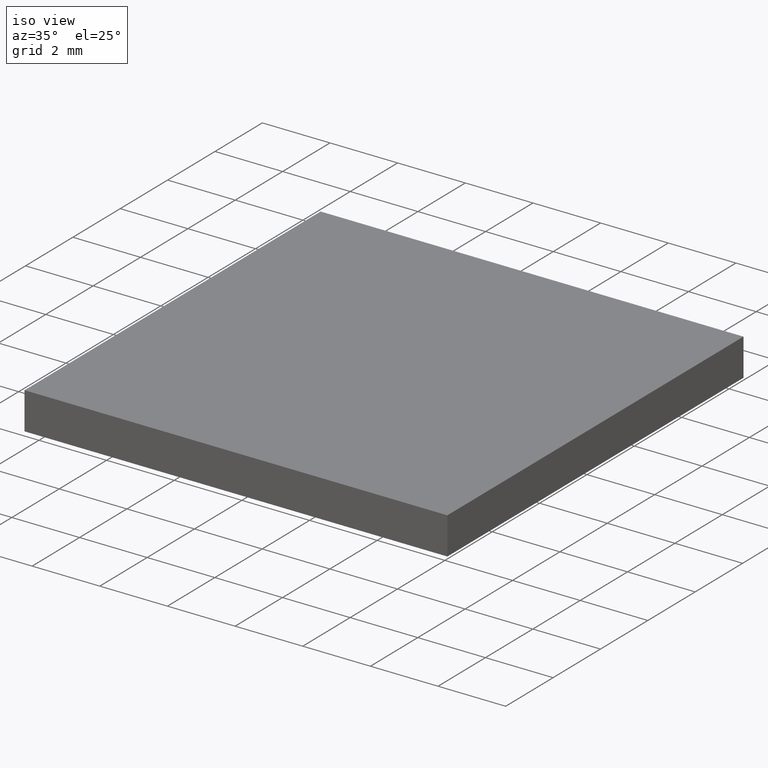
[diagram: clean part render]
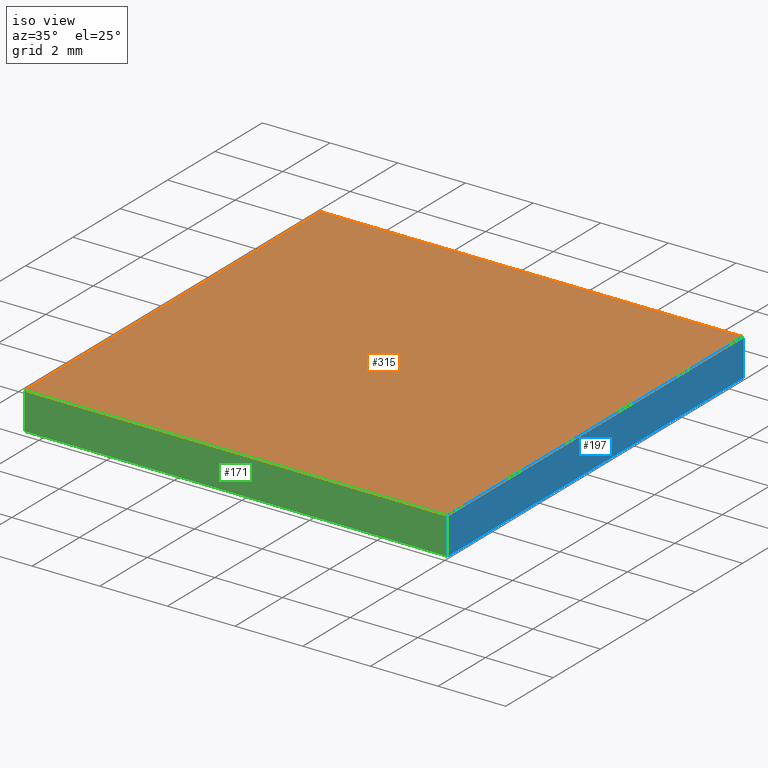
[diagram: same view with three faces highlighted in distinct colors, each labeled with its STEP entity id]
A machine part, iso view with three faces highlighted in distinct colors.
Their STEP definitions:

[orange] entity #315 — the highlighted planar face has unit normal (0, 0, -1).
#2 = VECTOR ( 'NONE', #17, 1000.000000000000000 ) ;
#12 = DIRECTION ( 'NONE',  ( -1.000000000000000000, 0.0000000000000000000, -0.0000000000000000000 ) ) ;
#17 = DIRECTION ( 'NONE',  ( 1.000000000000000000, 0.0000000000000000000, 0.0000000000000000000 ) ) ;
#30 = VERTEX_POINT ( 'NONE', #274 ) ;
#46 = EDGE_LOOP ( 'NONE', ( #149, #207, #247, #236 ) ) ;
#51 = CARTESIAN_POINT ( 'NONE',  ( -6.249999999999998200, 6.250000000000000900, 1.100000000000000100 ) ) ;
#53 = VECTOR ( 'NONE', #280, 1000.000000000000000 ) ;
#61 = PLANE ( 'NONE',  #298 ) ;
#64 = CARTESIAN_POINT ( 'NONE',  ( -6.249999999999998200, -6.249999999999999100, 1.100000000000000100 ) ) ;
#70 = VERTEX_POINT ( 'NONE', #51 ) ;
#79 = FACE_OUTER_BOUND ( 'NONE', #46, .T. ) ;
#87 = CARTESIAN_POINT ( 'NONE',  ( -6.249999999999998200, 6.250000000000000900, 1.100000000000000100 ) ) ;
#89 = DIRECTION ( 'NONE',  ( -0.0000000000000000000, -1.000000000000000000, -0.0000000000000000000 ) ) ;
#91 = VERTEX_POINT ( 'NONE', #127 ) ;
#119 = LINE ( 'NONE', #153, #53 ) ;
#127 = CARTESIAN_POINT ( 'NONE',  ( 6.250000000000001800, 6.250000000000000900, 1.100000000000000100 ) ) ;
#142 = LINE ( 'NONE', #64, #2 ) ;
#149 = ORIENTED_EDGE ( 'NONE', *, *, #208, .T. ) ;
#153 = CARTESIAN_POINT ( 'NONE',  ( 6.250000000000001800, -6.249999999999999100, 1.100000000000000100 ) ) ;
#155 = VECTOR ( 'NONE', #282, 1000.000000000000000 ) ;
#168 = LINE ( 'NONE', #87, #155 ) ;
#177 = EDGE_CURVE ( 'NONE', #91, #70, #168, .T. ) ;
#207 = ORIENTED_EDGE ( 'NONE', *, *, #177, .T. ) ;
#208 = EDGE_CURVE ( 'NONE', #229, #91, #119, .T. ) ;
#213 = DIRECTION ( 'NONE',  ( 0.0000000000000000000, 0.0000000000000000000, -1.000000000000000000 ) ) ;
#229 = VERTEX_POINT ( 'NONE', #255 ) ;
#233 = CARTESIAN_POINT ( 'NONE',  ( -6.249999999999998200, -6.249999999999999100, 1.100000000000000100 ) ) ;
#236 = ORIENTED_EDGE ( 'NONE', *, *, #283, .T. ) ;
#245 = EDGE_CURVE ( 'NONE', #70, #30, #281, .T. ) ;
#247 = ORIENTED_EDGE ( 'NONE', *, *, #245, .T. ) ;
#255 = CARTESIAN_POINT ( 'NONE',  ( 6.250000000000001800, -6.249999999999999100, 1.100000000000000100 ) ) ;
#257 = CARTESIAN_POINT ( 'NONE',  ( 0.0000000000000000000, 0.0000000000000000000, 1.100000000000000100 ) ) ;
#271 = VECTOR ( 'NONE', #89, 1000.000000000000000 ) ;
#274 = CARTESIAN_POINT ( 'NONE',  ( -6.249999999999998200, -6.249999999999999100, 1.100000000000000100 ) ) ;
#280 = DIRECTION ( 'NONE',  ( 0.0000000000000000000, 1.000000000000000000, 0.0000000000000000000 ) ) ;
#281 = LINE ( 'NONE', #233, #271 ) ;
#282 = DIRECTION ( 'NONE',  ( -1.000000000000000000, -0.0000000000000000000, -0.0000000000000000000 ) ) ;
#283 = EDGE_CURVE ( 'NONE', #30, #229, #142, .T. ) ;
#298 = AXIS2_PLACEMENT_3D ( 'NONE', #257, #213, #12 ) ;
#315 = ADVANCED_FACE ( 'NONE', ( #79 ), #61, .F. ) ;

[blue] entity #197 — the highlighted planar face has unit normal (-1, 0, 0).
#1 = FACE_OUTER_BOUND ( 'NONE', #276, .T. ) ;
#9 = EDGE_CURVE ( 'NONE', #221, #224, #269, .T. ) ;
#11 = VECTOR ( 'NONE', #130, 1000.000000000000000 ) ;
#18 = CARTESIAN_POINT ( 'NONE',  ( 6.250000000000001800, -6.249999999999999100, 0.0000000000000000000 ) ) ;
#29 = DIRECTION ( 'NONE',  ( 0.0000000000000000000, 1.000000000000000000, 0.0000000000000000000 ) ) ;
#45 = EDGE_CURVE ( 'NONE', #91, #224, #117, .T. ) ;
#50 = ORIENTED_EDGE ( 'NONE', *, *, #9, .T. ) ;
#53 = VECTOR ( 'NONE', #280, 1000.000000000000000 ) ;
#81 = LINE ( 'NONE', #303, #11 ) ;
#83 = CARTESIAN_POINT ( 'NONE',  ( 6.250000000000001800, -6.249999999999999100, 1.100000000000000100 ) ) ;
#88 = VECTOR ( 'NONE', #150, 1000.000000000000000 ) ;
#91 = VERTEX_POINT ( 'NONE', #127 ) ;
#97 = VECTOR ( 'NONE', #29, 1000.000000000000000 ) ;
#117 = LINE ( 'NONE', #202, #88 ) ;
#119 = LINE ( 'NONE', #153, #53 ) ;
#124 = CARTESIAN_POINT ( 'NONE',  ( 6.250000000000001800, -6.249999999999999100, 0.0000000000000000000 ) ) ;
#127 = CARTESIAN_POINT ( 'NONE',  ( 6.250000000000001800, 6.250000000000000900, 1.100000000000000100 ) ) ;
#130 = DIRECTION ( 'NONE',  ( -0.0000000000000000000, -0.0000000000000000000, -1.000000000000000000 ) ) ;
#139 = ORIENTED_EDGE ( 'NONE', *, *, #208, .F. ) ;
#150 = DIRECTION ( 'NONE',  ( -0.0000000000000000000, -0.0000000000000000000, -1.000000000000000000 ) ) ;
#152 = PLANE ( 'NONE',  #251 ) ;
#153 = CARTESIAN_POINT ( 'NONE',  ( 6.250000000000001800, -6.249999999999999100, 1.100000000000000100 ) ) ;
#180 = CARTESIAN_POINT ( 'NONE',  ( 6.250000000000001800, 6.250000000000000900, 0.0000000000000000000 ) ) ;
#197 = ADVANCED_FACE ( 'NONE', ( #1 ), #152, .F. ) ;
#202 = CARTESIAN_POINT ( 'NONE',  ( 6.250000000000001800, 6.250000000000000900, 1.100000000000000100 ) ) ;
#208 = EDGE_CURVE ( 'NONE', #229, #91, #119, .T. ) ;
#210 = DIRECTION ( 'NONE',  ( -1.000000000000000000, 0.0000000000000000000, 0.0000000000000000000 ) ) ;
#215 = DIRECTION ( 'NONE',  ( 0.0000000000000000000, 0.0000000000000000000, 1.000000000000000000 ) ) ;
#221 = VERTEX_POINT ( 'NONE', #18 ) ;
#222 = EDGE_CURVE ( 'NONE', #229, #221, #81, .T. ) ;
#224 = VERTEX_POINT ( 'NONE', #180 ) ;
#229 = VERTEX_POINT ( 'NONE', #255 ) ;
#251 = AXIS2_PLACEMENT_3D ( 'NONE', #83, #210, #215 ) ;
#255 = CARTESIAN_POINT ( 'NONE',  ( 6.250000000000001800, -6.249999999999999100, 1.100000000000000100 ) ) ;
#266 = ORIENTED_EDGE ( 'NONE', *, *, #222, .T. ) ;
#269 = LINE ( 'NONE', #124, #97 ) ;
#276 = EDGE_LOOP ( 'NONE', ( #50, #310, #139, #266 ) ) ;
#280 = DIRECTION ( 'NONE',  ( 0.0000000000000000000, 1.000000000000000000, 0.0000000000000000000 ) ) ;
#303 = CARTESIAN_POINT ( 'NONE',  ( 6.250000000000001800, -6.249999999999999100, 1.100000000000000100 ) ) ;
#310 = ORIENTED_EDGE ( 'NONE', *, *, #45, .F. ) ;

[green] entity #171 — the highlighted planar face has unit normal (0, 1, 0).
#2 = VECTOR ( 'NONE', #17, 1000.000000000000000 ) ;
#7 = ORIENTED_EDGE ( 'NONE', *, *, #288, .T. ) ;
#11 = VECTOR ( 'NONE', #130, 1000.000000000000000 ) ;
#17 = DIRECTION ( 'NONE',  ( 1.000000000000000000, 0.0000000000000000000, 0.0000000000000000000 ) ) ;
#18 = CARTESIAN_POINT ( 'NONE',  ( 6.250000000000001800, -6.249999999999999100, 0.0000000000000000000 ) ) ;
#30 = VERTEX_POINT ( 'NONE', #274 ) ;
#31 = DIRECTION ( 'NONE',  ( -0.0000000000000000000, -0.0000000000000000000, -1.000000000000000000 ) ) ;
#40 = ORIENTED_EDGE ( 'NONE', *, *, #222, .F. ) ;
#64 = CARTESIAN_POINT ( 'NONE',  ( -6.249999999999998200, -6.249999999999999100, 1.100000000000000100 ) ) ;
#68 = VECTOR ( 'NONE', #31, 1000.000000000000000 ) ;
#81 = LINE ( 'NONE', #303, #11 ) ;
#84 = CARTESIAN_POINT ( 'NONE',  ( -6.249999999999998200, -6.249999999999999100, 1.100000000000000100 ) ) ;
#128 = DIRECTION ( 'NONE',  ( 0.0000000000000000000, -0.0000000000000000000, 1.000000000000000000 ) ) ;
#130 = DIRECTION ( 'NONE',  ( -0.0000000000000000000, -0.0000000000000000000, -1.000000000000000000 ) ) ;
#132 = CARTESIAN_POINT ( 'NONE',  ( -6.249999999999998200, -6.249999999999999100, 0.0000000000000000000 ) ) ;
#142 = LINE ( 'NONE', #64, #2 ) ;
#158 = DIRECTION ( 'NONE',  ( 1.000000000000000000, 0.0000000000000000000, 0.0000000000000000000 ) ) ;
#171 = ADVANCED_FACE ( 'NONE', ( #227 ), #234, .F. ) ;
#182 = DIRECTION ( 'NONE',  ( 0.0000000000000000000, 1.000000000000000000, 0.0000000000000000000 ) ) ;
#184 = CARTESIAN_POINT ( 'NONE',  ( -6.249999999999998200, -6.249999999999999100, 0.0000000000000000000 ) ) ;
#189 = EDGE_CURVE ( 'NONE', #30, #194, #252, .T. ) ;
#194 = VERTEX_POINT ( 'NONE', #132 ) ;
#199 = EDGE_LOOP ( 'NONE', ( #7, #40, #201, #272 ) ) ;
#201 = ORIENTED_EDGE ( 'NONE', *, *, #283, .F. ) ;
#221 = VERTEX_POINT ( 'NONE', #18 ) ;
#222 = EDGE_CURVE ( 'NONE', #229, #221, #81, .T. ) ;
#225 = AXIS2_PLACEMENT_3D ( 'NONE', #84, #182, #128 ) ;
#227 = FACE_OUTER_BOUND ( 'NONE', #199, .T. ) ;
#229 = VERTEX_POINT ( 'NONE', #255 ) ;
#234 = PLANE ( 'NONE',  #225 ) ;
#235 = LINE ( 'NONE', #184, #243 ) ;
#243 = VECTOR ( 'NONE', #158, 1000.000000000000000 ) ;
#252 = LINE ( 'NONE', #300, #68 ) ;
#255 = CARTESIAN_POINT ( 'NONE',  ( 6.250000000000001800, -6.249999999999999100, 1.100000000000000100 ) ) ;
#272 = ORIENTED_EDGE ( 'NONE', *, *, #189, .T. ) ;
#274 = CARTESIAN_POINT ( 'NONE',  ( -6.249999999999998200, -6.249999999999999100, 1.100000000000000100 ) ) ;
#283 = EDGE_CURVE ( 'NONE', #30, #229, #142, .T. ) ;
#288 = EDGE_CURVE ( 'NONE', #194, #221, #235, .T. ) ;
#300 = CARTESIAN_POINT ( 'NONE',  ( -6.249999999999998200, -6.249999999999999100, 1.100000000000000100 ) ) ;
#303 = CARTESIAN_POINT ( 'NONE',  ( 6.250000000000001800, -6.249999999999999100, 1.100000000000000100 ) ) ;